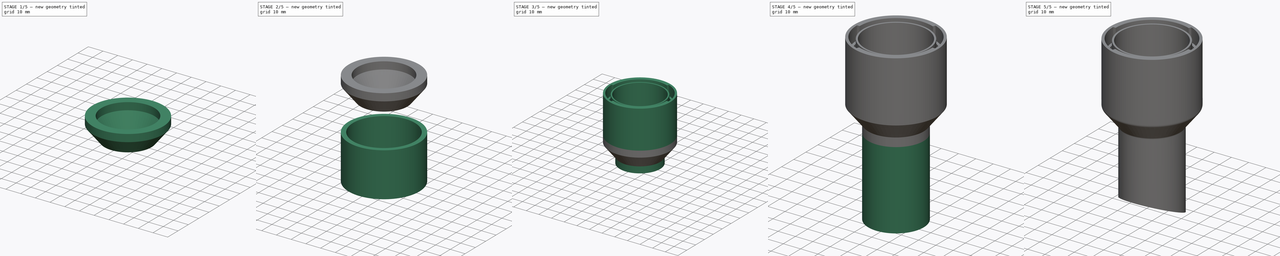
[diagram: build sequence overview — one tinted view per stage of 5, left to right]
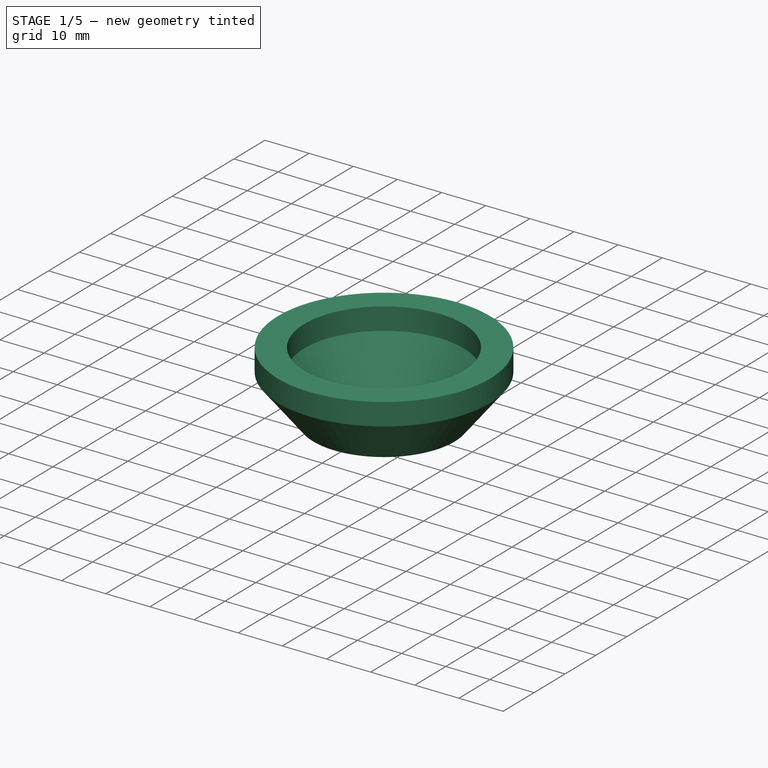
[diagram: stage 1 of 5 — iso view after this stage's code; geometry added in this stage tinted green]
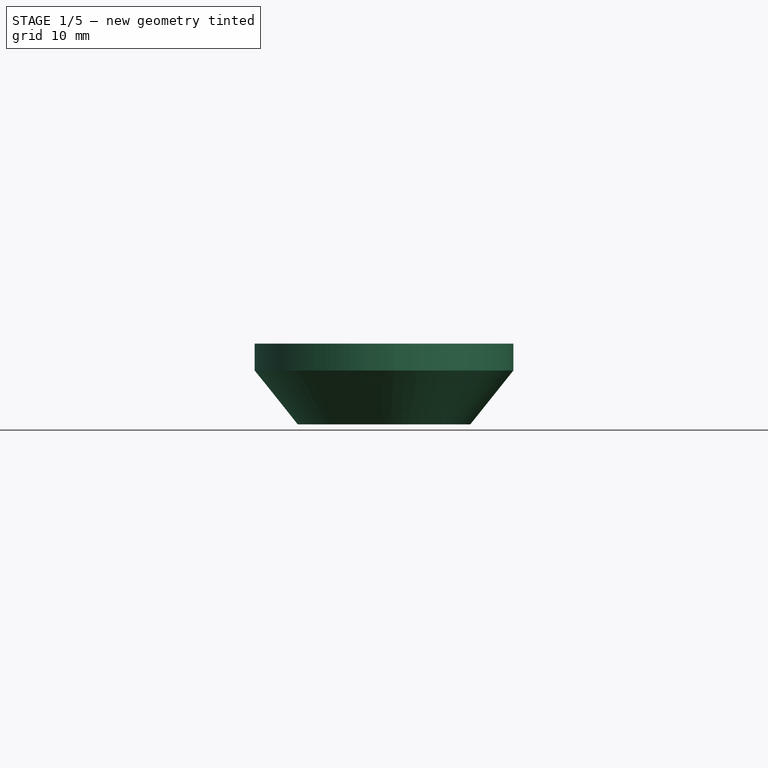
[diagram: stage 1 of 5 — front view after this stage's code; geometry added in this stage tinted green]
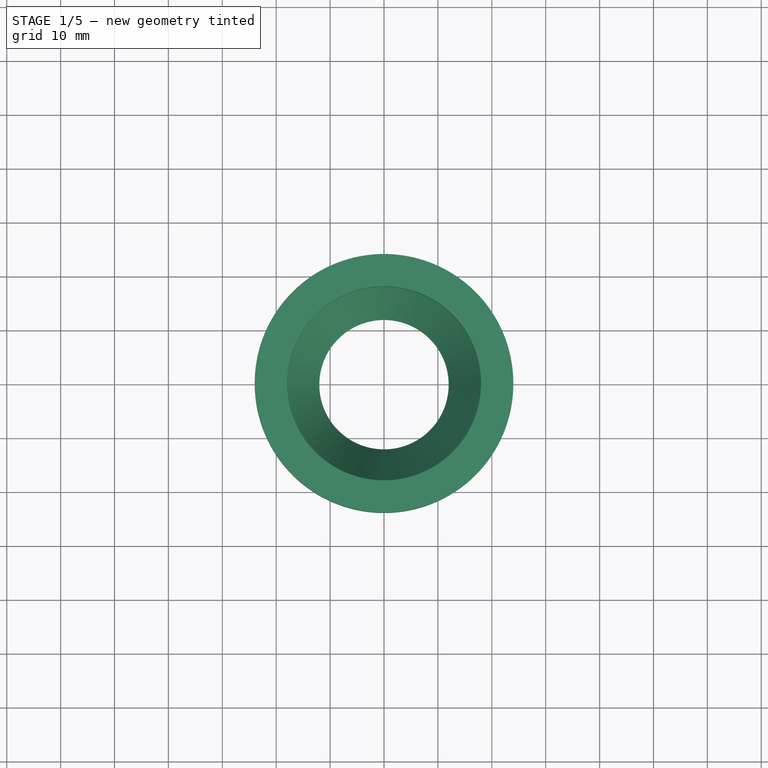
[diagram: stage 1 of 5 — top view after this stage's code; geometry added in this stage tinted green]
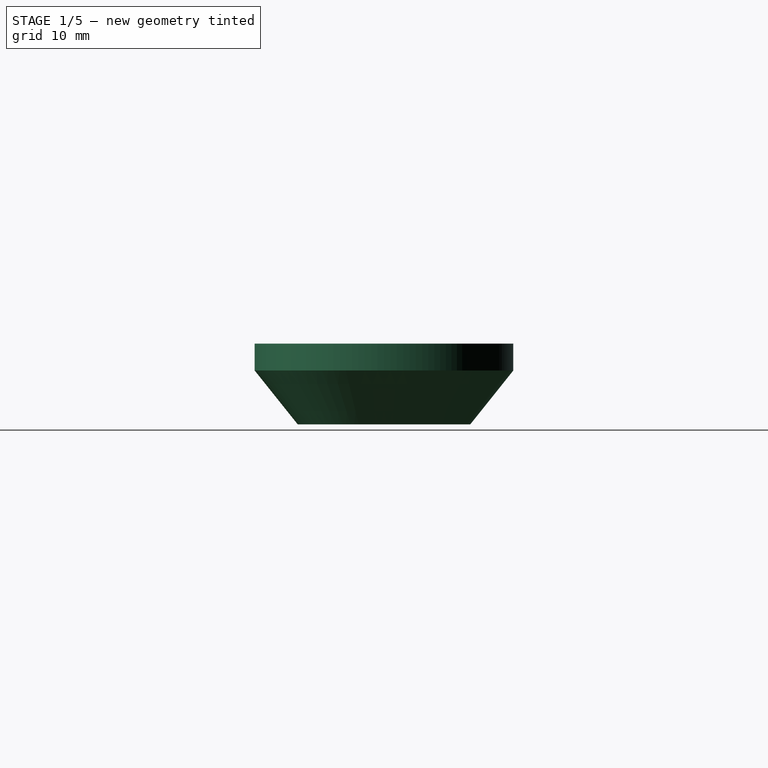
[diagram: stage 1 of 5 — right view after this stage's code; geometry added in this stage tinted green]
FCSTD DOCUMENT  (FreeCAD 0.18R4 (GitTag))
Label: conector_aspiracion_caladora
License: All rights reserved
LicenseURL: http://en.wikipedia.org/wiki/All_rights_reserved
objects: Part::Cylinder×12, Part::Cut×9, Part::MultiFuse×3, Sketcher::SketchObject×2, PartDesign::Revolution×2, PartDesign::Body×2, Part::Cone×2, Part::Fillet×2, Part::Wedge×1, Part::FeaturePython×1
note: 38 computed .brp shape members not serialized (recipe doc carries the construction recipe); baked Part::Feature solids carry a one-line shape summary decoded from their .brp

FEATURE [Part::Cylinder] Cylinder010  label="Cilindro010"
  Angle = 360
  AttacherType = Attacher::AttachEngine3D
  Height = 5
  Radius = 24
FEATURE [Part::Cylinder] Cylinder011  label="Cilindro011"
  Angle = 360
  AttacherType = Attacher::AttachEngine3D
  Height = 5
  Radius = 18
FEATURE [Part::Cut] Cut007
  Base = -> Cylinder010
  Placement = pos=(0,0,60) rot=(0,0,1;0rad)
  Tool = -> Cylinder011
FEATURE [Part::Cone] Cone  label="Cono"
  Angle = 360
  AttacherType = Attacher::AttachEngine3D
  Height = 10
  Placement = pos=(-3.6e-15,-5.8e-15,50) rot=(0,0,1;0rad)
  Radius1 = 12
  Radius2 = 18
FEATURE [Part::Cone] Cone001  label="Cono001"
  Angle = 360
  AttacherType = Attacher::AttachEngine3D
  Height = 10
  Placement = pos=(-3.6e-15,-5.6e-15,50) rot=(0,0,1;0rad)
  Radius1 = 16
  Radius2 = 24
FEATURE [Part::Cut] Cut008
  Base = -> Cone001
  Tool = -> Cone
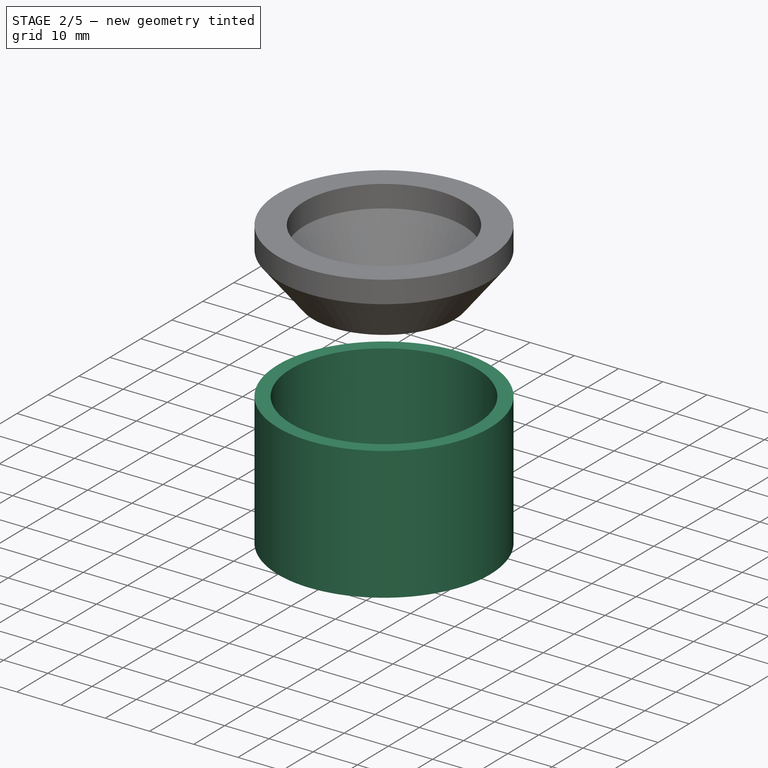
[diagram: stage 2 of 5 — iso view after this stage's code; geometry added in this stage tinted green]
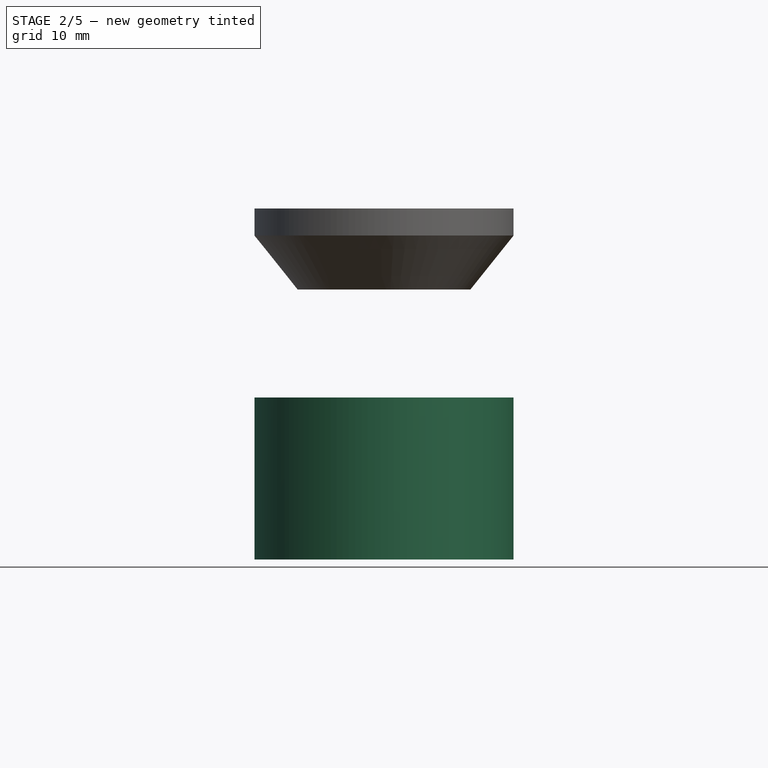
[diagram: stage 2 of 5 — front view after this stage's code; geometry added in this stage tinted green]
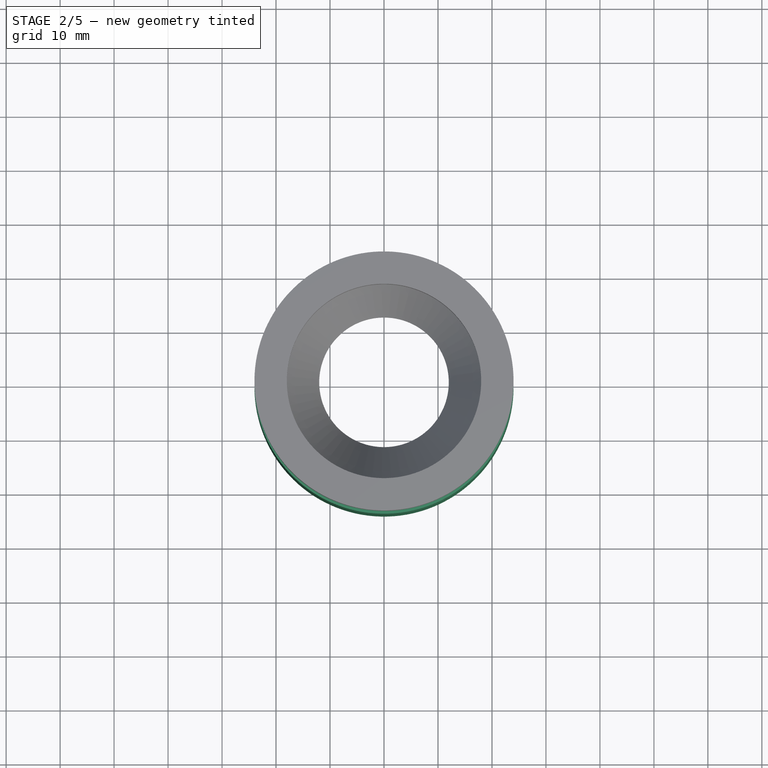
[diagram: stage 2 of 5 — top view after this stage's code; geometry added in this stage tinted green]
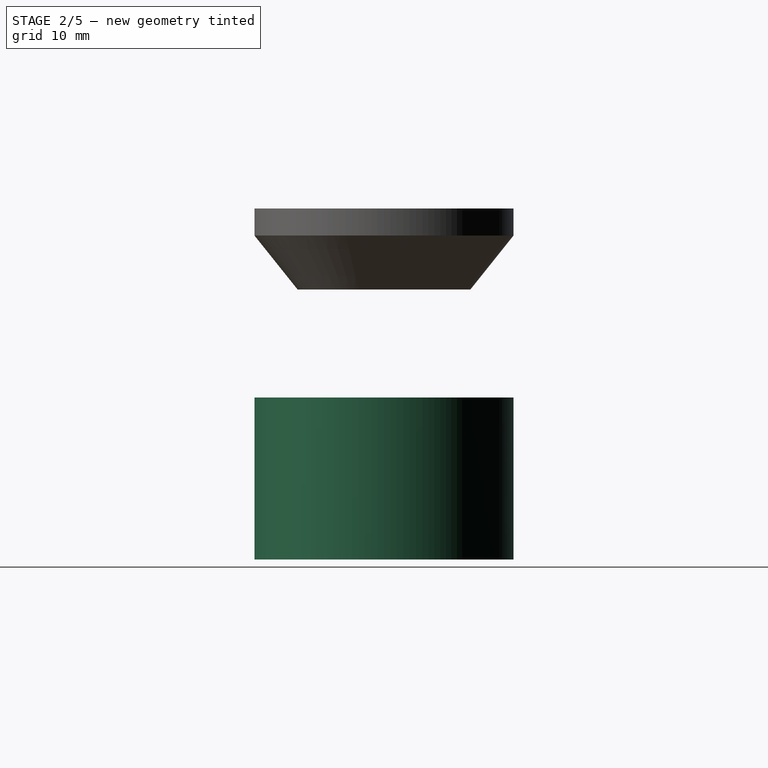
[diagram: stage 2 of 5 — right view after this stage's code; geometry added in this stage tinted green]
FEATURE [Part::Cylinder] Cylinder006  label="Cilindro006"
  Angle = 360
  AttacherType = Attacher::AttachEngine3D
  Height = 30
  Radius = 24
FEATURE [Part::Cylinder] Cylinder007  label="Cilindro007"
  Angle = 360
  AttacherType = Attacher::AttachEngine3D
  Height = 30
  Radius = 21
FEATURE [Part::Cut] Cut004
  Base = -> Cylinder006
  Tool = -> Cylinder007
FEATURE [Sketcher::SketchObject] Sketch
  MapMode = 5
  Placement = pos=(0,0,0) rot=(1,0,0;1.5708rad)
  Support = -> [XZ_Plane]
  sketch-geometry (4):
    g0: LineSegment StartX=21 StartY=2.3 StartZ=0 EndX=22.5 EndY=2.3 EndZ=0
    g1: LineSegment StartX=22.5 StartY=2.3 StartZ=0 EndX=22.5 EndY=0 EndZ=0
    g2: LineSegment StartX=22.5 StartY=0 StartZ=0 EndX=21 EndY=0 EndZ=0
    g3: LineSegment StartX=21 StartY=0 StartZ=0 EndX=21 EndY=2.3 EndZ=0
  constraints (12):
    c: Coincident(g0,g1)
    c: Coincident(g1,g2)
    c: Coincident(g2,g3)
    c: Coincident(g3,g0)
    c: Horizontal(g0)
    c: Horizontal(g2)
    c: Vertical(g1)
    c: Vertical(g3)
    c: DistanceX(g0,g0) = 1.5
    c: DistanceY(g1,g0) = 2.3
    c: DistanceY(g2,g-1) = 0
    c: DistanceX(g-1,g0) = 21
FEATURE [PartDesign::Revolution] Revolution
  Angle = 69
  Axis = (-3e-16,3e-16,1)
  Base = (0,0,0)
  Placement = pos=(0,0,0) rot=(1,0,0;1.5708rad)
  Profile = -> Sketch
  ReferenceAxis = -> Z_Axis
  Reversed = true
FEATURE [PartDesign::Body] Body
  Group = -> [Sketch,Revolution]
  Origin = -> Origin
  Tip = -> Revolution
FEATURE [Sketcher::SketchObject] Sketch001
  MapMode = 5
  Placement = pos=(0,0,0) rot=(1,0,0;1.5708rad)
  Support = -> [XZ_Plane001]
  sketch-geometry (4):
    g0: LineSegment StartX=21 StartY=7.8 StartZ=0 EndX=22.5 EndY=7.8 EndZ=0
    g1: LineSegment StartX=22.5 StartY=7.8 StartZ=0 EndX=22.5 EndY=0 EndZ=0
    g2: LineSegment StartX=22.5 StartY=0 StartZ=0 EndX=21 EndY=0 EndZ=0
    g3: LineSegment StartX=21 StartY=0 StartZ=0 EndX=21 EndY=7.8 EndZ=0
  constraints (12):
    c: Coincident(g0,g1)
    c: Coincident(g1,g2)
    c: Coincident(g2,g3)
    c: Coincident(g3,g0)
    c: Horizontal(g0)
    c: Horizontal(g2)
    c: Vertical(g1)
    c: Vertical(g3)
    c: DistanceX(g0,g0) = 1.5
    c: DistanceY(g1,g0) = 7.8
    c: DistanceY(g2,g-1) = 0
    c: DistanceX(g-1,g0) = 21
FEATURE [PartDesign::Revolution] Revolution001
  Angle = 69
  Axis = (-3e-16,3e-16,1)
  Base = (0,0,0)
  Placement = pos=(0,0,0) rot=(1,0,0;1.5708rad)
  Profile = -> Sketch001
  ReferenceAxis = -> Z_Axis001
  Reversed = true
FEATURE [PartDesign::Body] Body001
  Group = -> [Sketch001,Revolution001]
  Origin = -> Origin001
  Placement = pos=(0,0,0) rot=(0,0,1;1.20428rad)
  Tip = -> Revolution001
FEATURE [Part::MultiFuse] Fusion001
  Shapes = -> [Body001,Body]
FEATURE [Part::FeaturePython] Array  # Draft array (typed FeaturePython)
  Angle = 360
  ArrayType = 1
  Axis = (0,0,1)
  Base = -> Fusion001
  Center = (0,0,0)
  Fuse = false
  IntervalAxis = (0,0,0)
  IntervalX = (1,0,0)
  IntervalY = (0,1,0)
  IntervalZ = (0,0,1)
  NumberPolar = 2
  NumberX = 0
  NumberY = 0
  NumberZ = 0
  Placement = pos=(3e-15,1e-15,22.2) rot=(0,0,1;0rad)
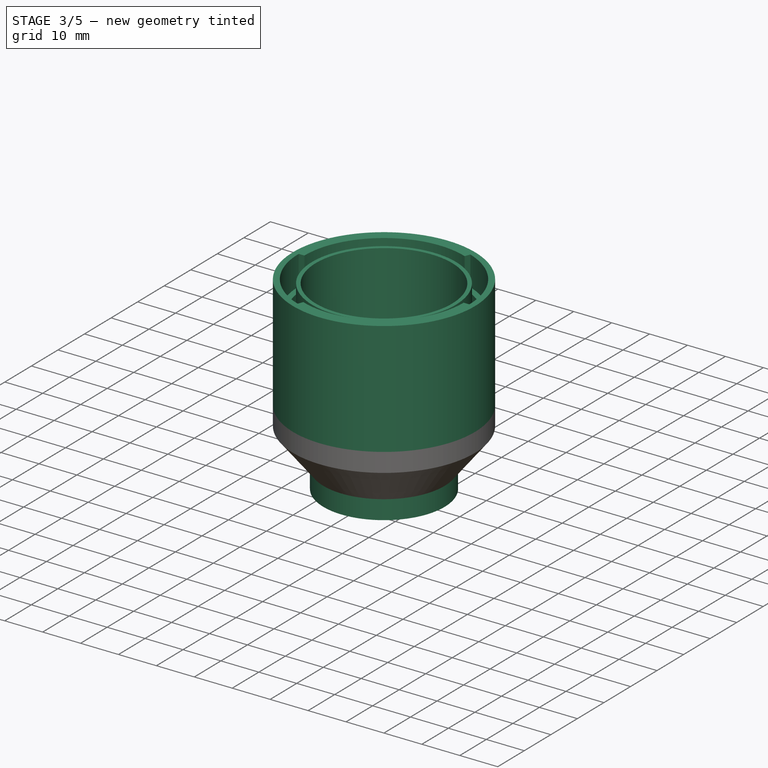
[diagram: stage 3 of 5 — iso view after this stage's code; geometry added in this stage tinted green]
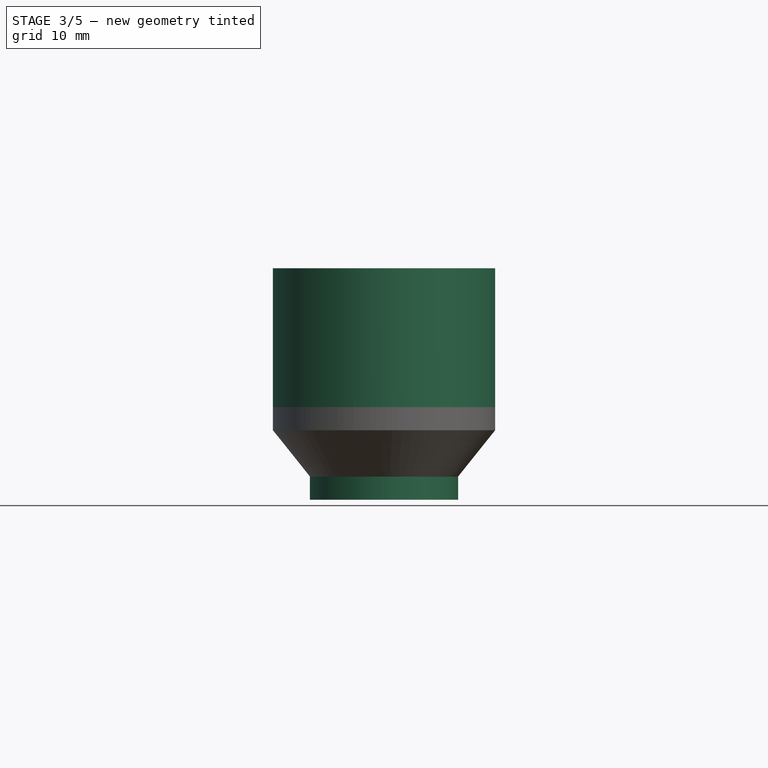
[diagram: stage 3 of 5 — front view after this stage's code; geometry added in this stage tinted green]
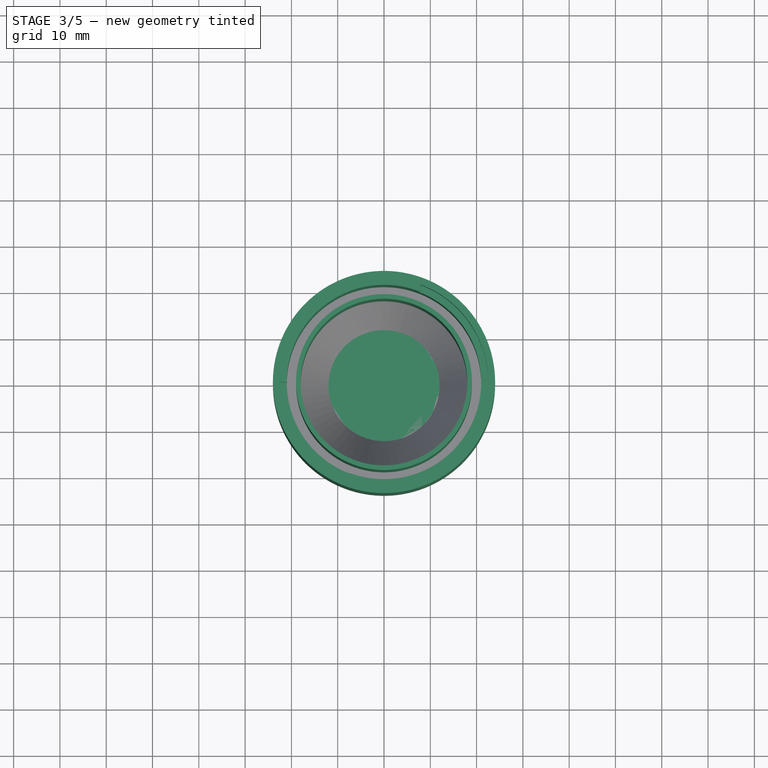
[diagram: stage 3 of 5 — top view after this stage's code; geometry added in this stage tinted green]
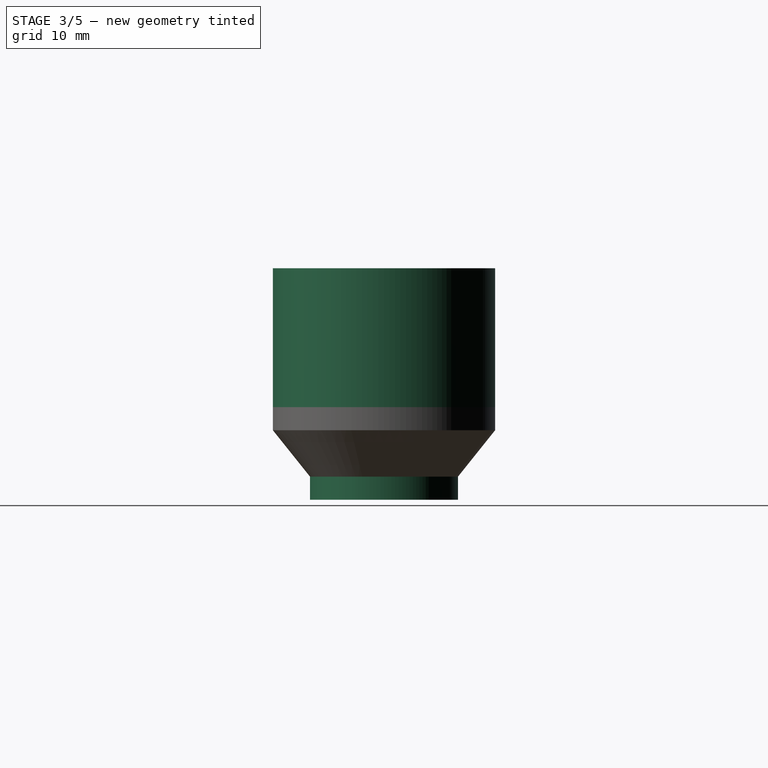
[diagram: stage 3 of 5 — right view after this stage's code; geometry added in this stage tinted green]
FEATURE [Part::Cylinder] Cylinder004  label="Cilindro004"
  Angle = 360
  AttacherType = Attacher::AttachEngine3D
  Height = 5
  Placement = pos=(0,9e-16,45) rot=(0,0,1;0rad)
  Radius = 16
FEATURE [Part::Cylinder] Cylinder005  label="Cilindro005"
  Angle = 360
  AttacherType = Attacher::AttachEngine3D
  Height = 5
  Placement = pos=(-5e-15,2e-15,45) rot=(0,0,1;0rad)
  Radius = 12
FEATURE [Part::Cylinder] Cylinder008  label="Cilindro008"
  Angle = 360
  AttacherType = Attacher::AttachEngine3D
  Height = 29
  Placement = pos=(0,0,1) rot=(0,0,1;0rad)
  Radius = 19
FEATURE [Part::Cylinder] Cylinder009  label="Cilindro009"
  Angle = 360
  AttacherType = Attacher::AttachEngine3D
  Height = 29
  Placement = pos=(0,0,1) rot=(0,0,1;0rad)
  Radius = 18
FEATURE [Part::Cut] Cut005
  Base = -> Cylinder008
  Placement = pos=(0,0,64) rot=(0,0,1;0rad)
  Tool = -> Cylinder009
FEATURE [Part::Cut] Cut006
  Base = -> Cut004
  Placement = pos=(0,0,65) rot=(0,0,1;0rad)
  Tool = -> Array
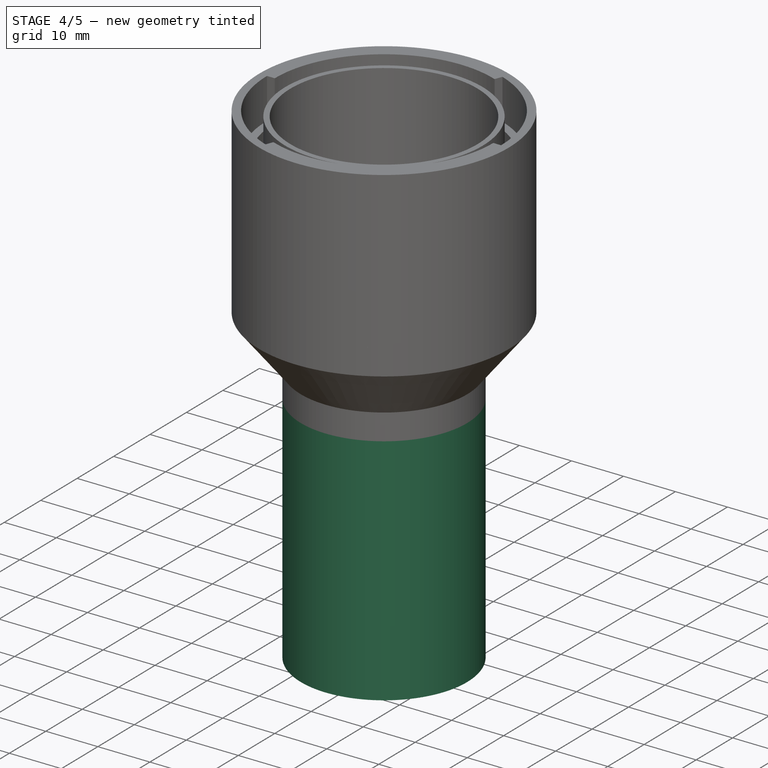
[diagram: stage 4 of 5 — iso view after this stage's code; geometry added in this stage tinted green]
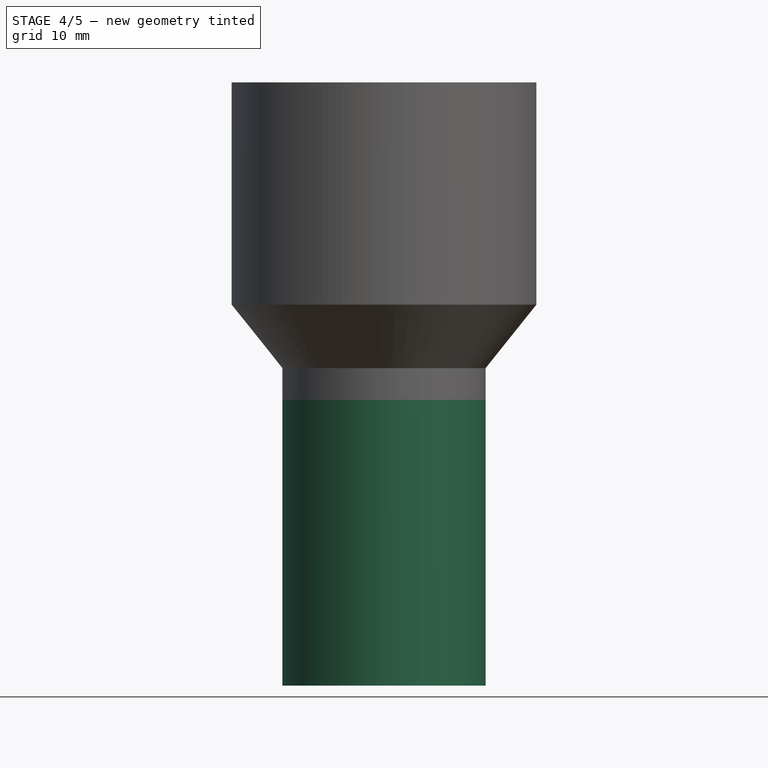
[diagram: stage 4 of 5 — front view after this stage's code; geometry added in this stage tinted green]
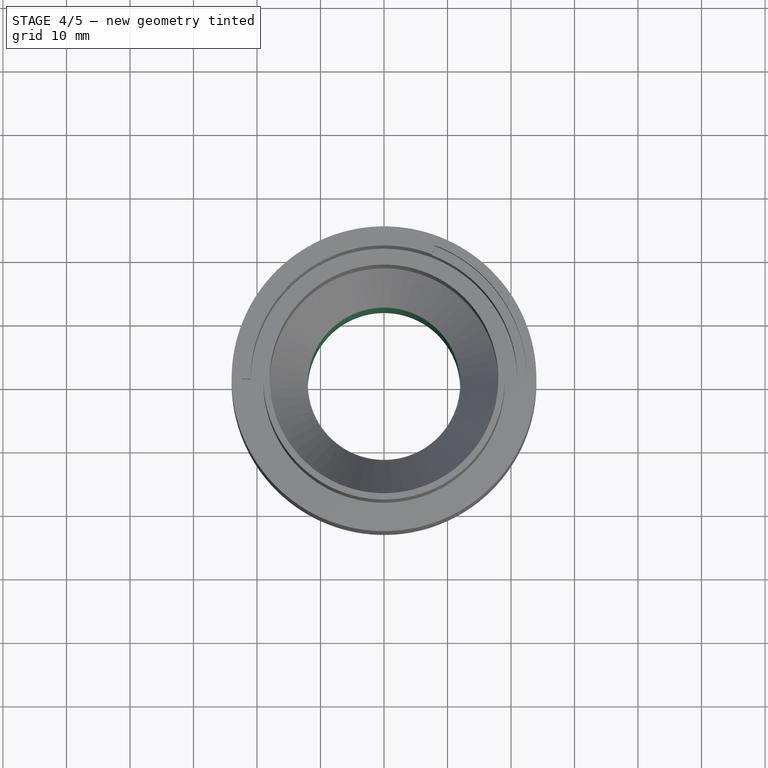
[diagram: stage 4 of 5 — top view after this stage's code; geometry added in this stage tinted green]
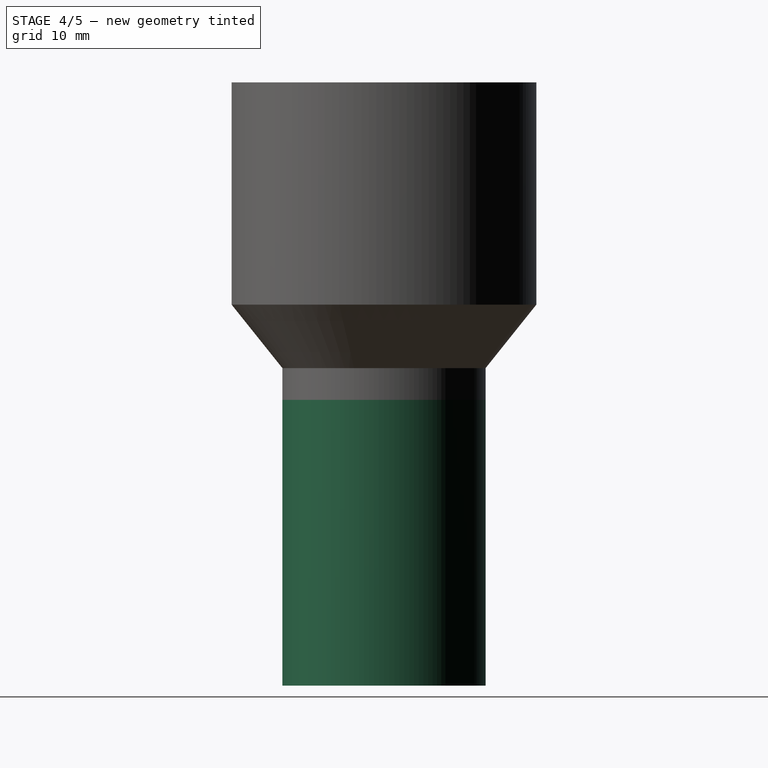
[diagram: stage 4 of 5 — right view after this stage's code; geometry added in this stage tinted green]
FEATURE [Part::Cylinder] Cylinder  label="Cilindro"
  Angle = 360
  AttacherType = Attacher::AttachEngine3D
  Height = 45
  Radius = 16
FEATURE [Part::Cylinder] Cylinder001  label="Cilindro001"
  Angle = 360
  AttacherType = Attacher::AttachEngine3D
  Height = 45
  Radius = 15
FEATURE [Part::Cut] Cut
  Base = -> Cylinder
  Tool = -> Cylinder001
FEATURE [Part::Cylinder] Cylinder002  label="Cilindro002"
  Angle = 360
  AttacherType = Attacher::AttachEngine3D
  Height = 45
  Radius = 13
FEATURE [Part::Cylinder] Cylinder003  label="Cilindro003"
  Angle = 360
  AttacherType = Attacher::AttachEngine3D
  Height = 45
  Radius = 12
FEATURE [Part::Cut] Cut001
  Base = -> Cylinder002
  Tool = -> Cylinder003
FEATURE [Part::Cut] Cut003
  Base = -> Cylinder004
  Tool = -> Cylinder005
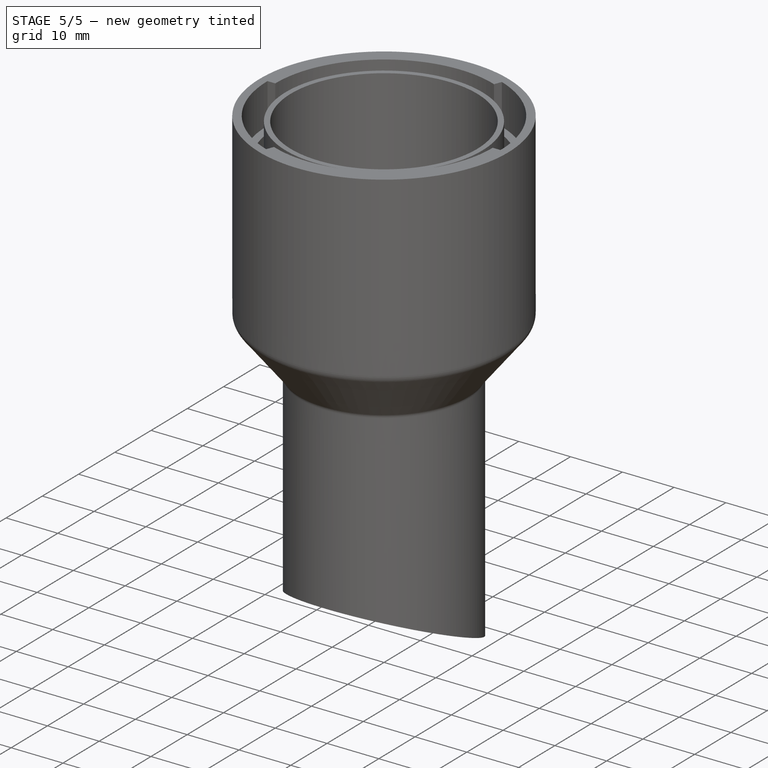
[diagram: stage 5 of 5 — iso view after this stage's code; geometry added in this stage tinted green]
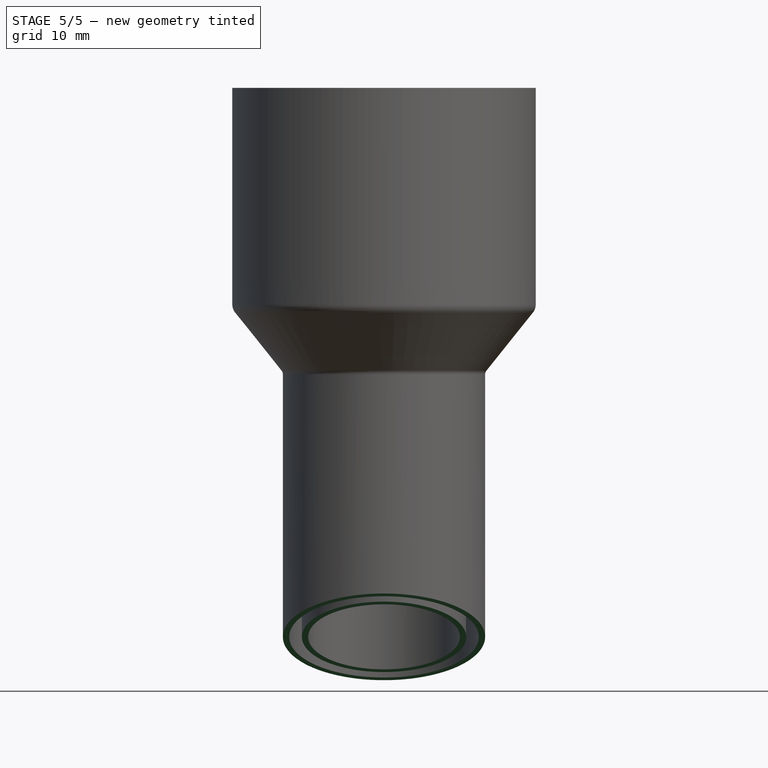
[diagram: stage 5 of 5 — front view after this stage's code; geometry added in this stage tinted green]
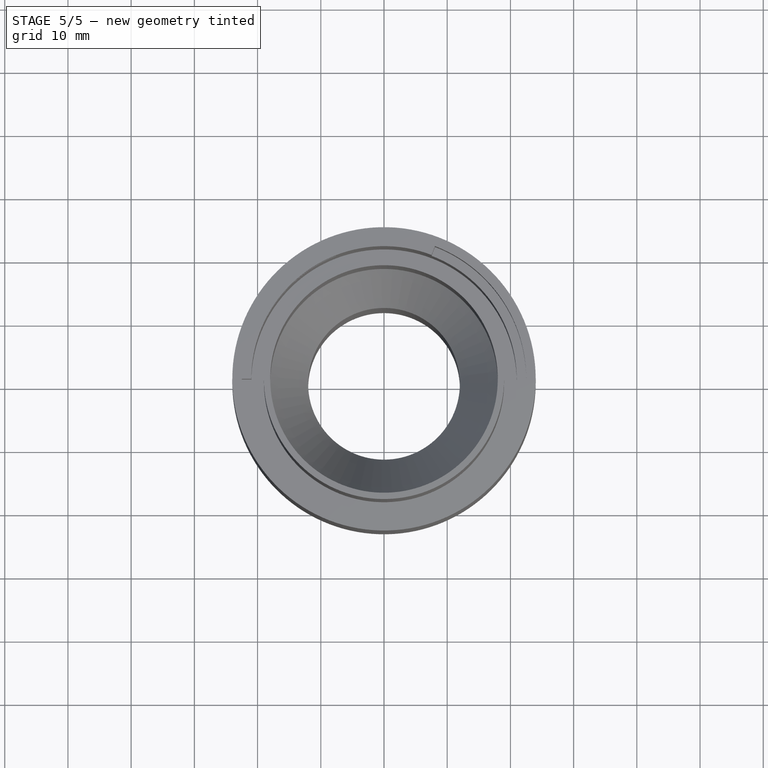
[diagram: stage 5 of 5 — top view after this stage's code; geometry added in this stage tinted green]
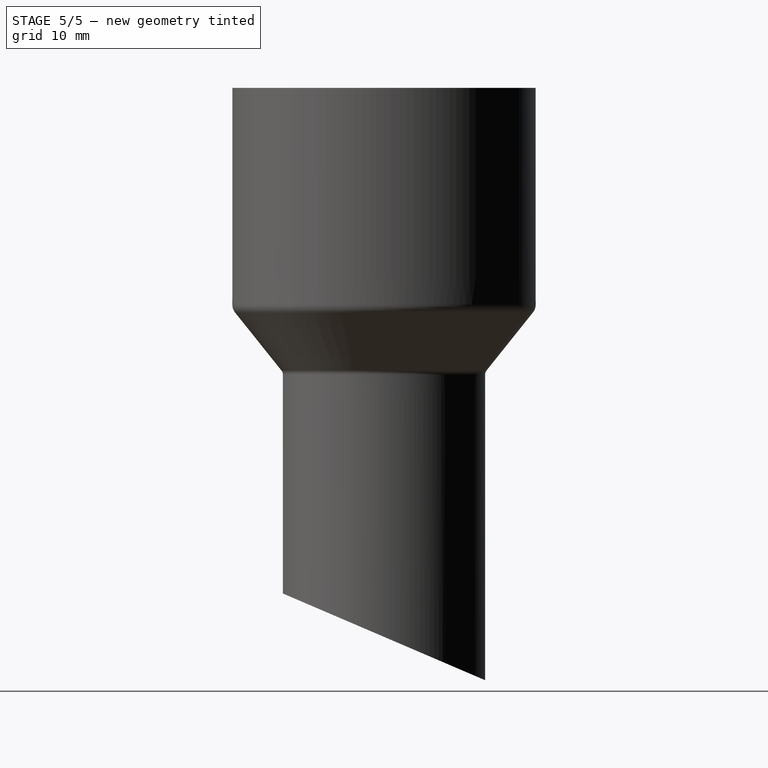
[diagram: stage 5 of 5 — right view after this stage's code; geometry added in this stage tinted green]
FEATURE [Part::Wedge] Wedge  label="Cuña"
  AttacherType = Attacher::AttachEngine3D
  Placement = pos=(-5,11,0) rot=(0,0,1;0rad)
  X2max = 80
  X2min = -80
  Xmax = 10
  Xmin = 0
  Ymax = 8
  Ymin = -27
  Z2max = 0
  Z2min = 0
  Zmax = 15
  Zmin = 0
FEATURE [Part::MultiFuse] Fusion
  Shapes = -> [Cut,Cut001]
FEATURE [Part::Cut] Cut002
  Base = -> Fusion
  Tool = -> Wedge
FEATURE [Part::MultiFuse] Fusion002
  Shapes = -> [Cut008,Cut007,Cut005,Cut006,Cut003,Cut002]
FEATURE [Part::Fillet] Fillet
  Base = -> Fusion002
  Edges = 1 edges r=2: [Edge1]
FEATURE [Part::Fillet] Fillet001
  Base = -> Fillet
  Edges = 1 edges r=1: [Edge3]
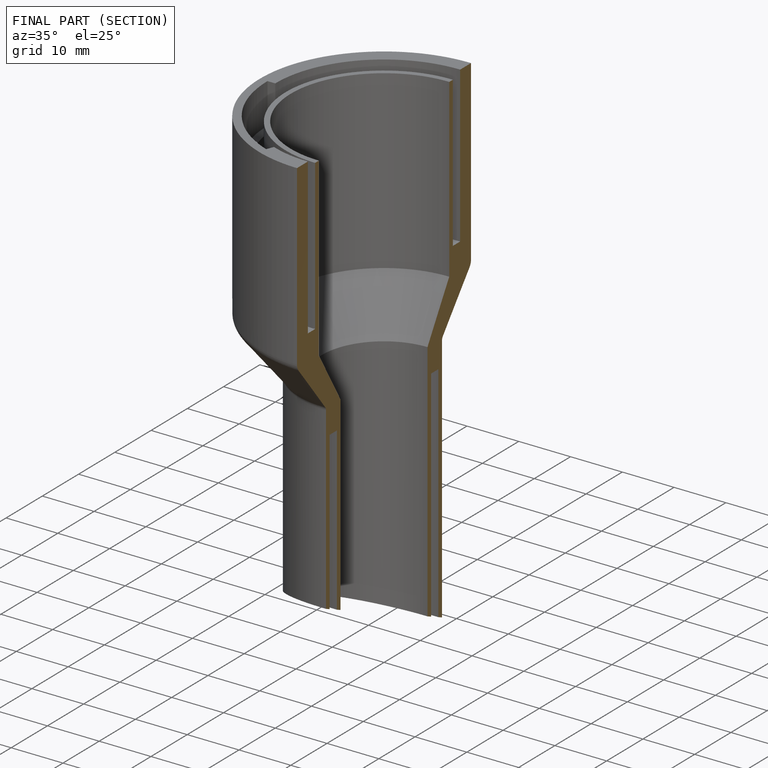
[diagram: finished part — half-section view (interior)]
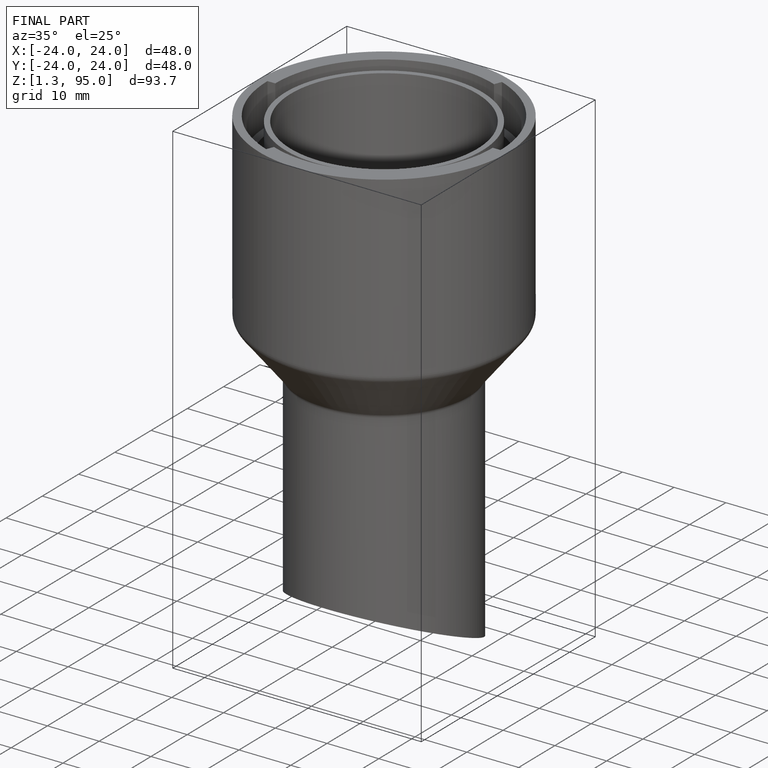
[diagram: finished part — iso view with bounding-box wireframe]
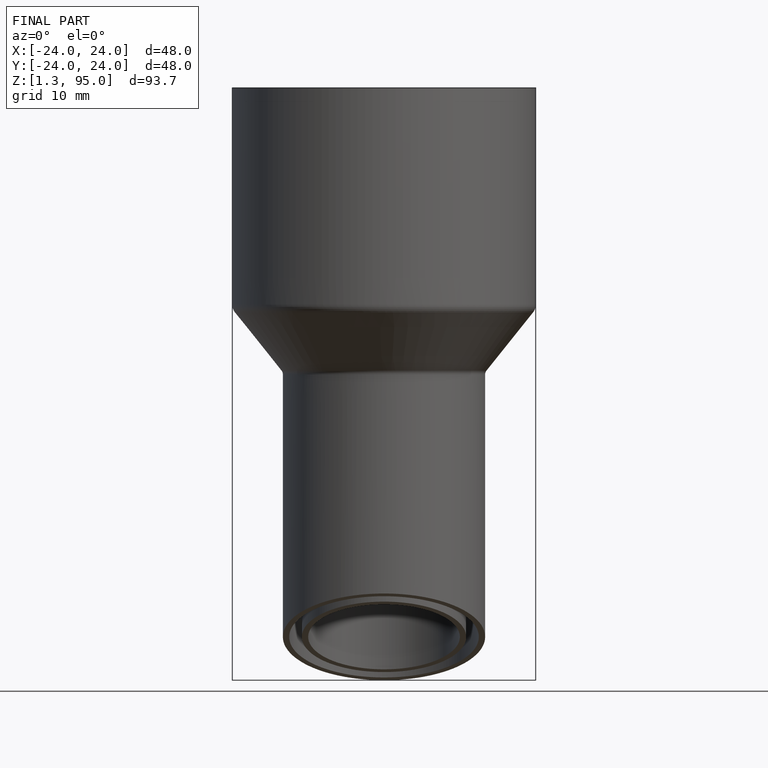
[diagram: finished part — front view with bounding-box wireframe]
